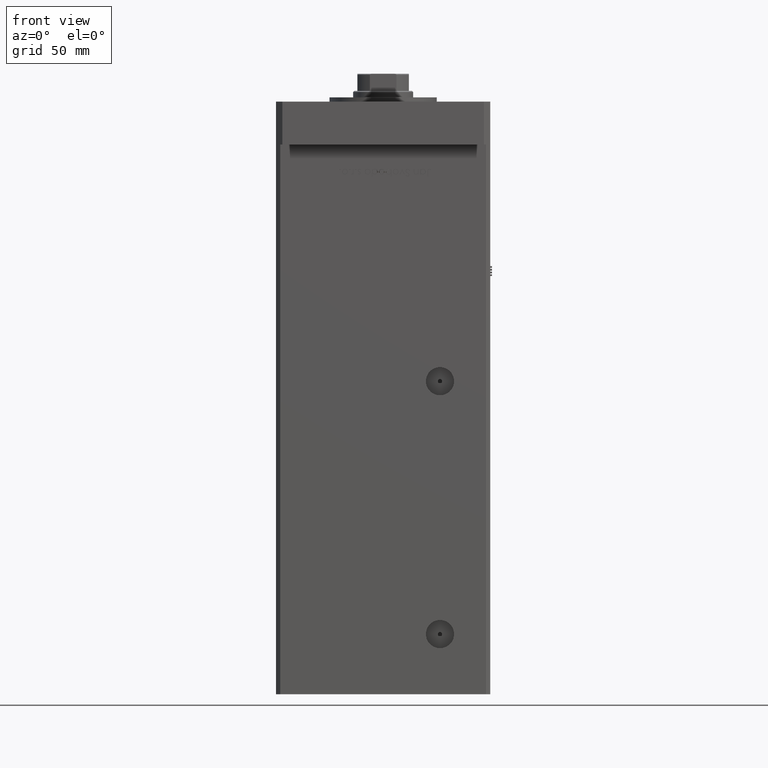
[diagram: clean part render]
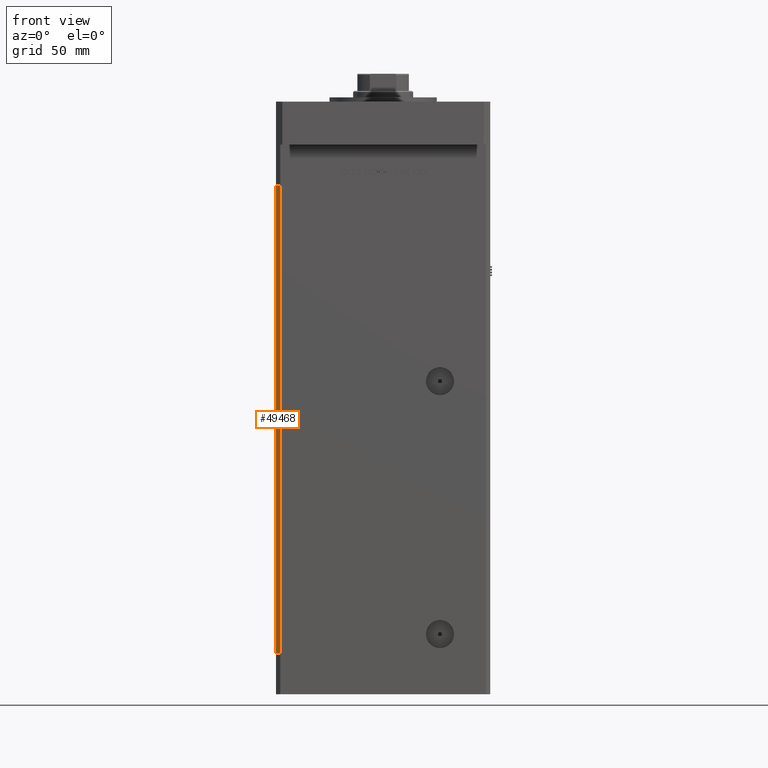
[diagram: same view with one face highlighted and labeled with its STEP entity id]
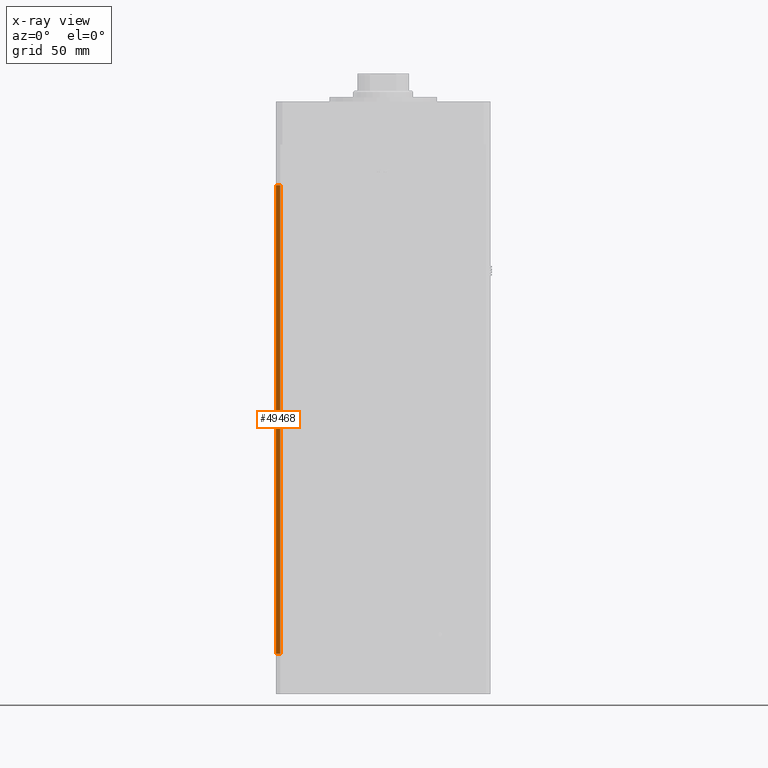
[diagram: x-ray of the same camera — body ghosted, the highlighted face saturated]
A machine part, front view. The second image highlights one B-rep face of the part: STEP entity #49468.
The next image is the same camera in x-ray: the body ghosted, the highlighted face saturated — about 0% of this face is hidden behind the body in this view.
In plain terms, the highlighted planar face has unit normal (0.7071, 0.7071, 0).
Its self-contained STEP definition (entity closure, byte-faithful):
#1218 = DIRECTION ( 'NONE',  ( -0.000000000000000000, -0.000000000000000000, -1.000000000000000000 ) ) ;
#2831 = DIRECTION ( 'NONE',  ( -0.000000000000000000, -0.000000000000000000, -1.000000000000000000 ) ) ;
#4010 = ORIENTED_EDGE ( 'NONE', *, *, #34100, .T. ) ;
#4667 = DIRECTION ( 'NONE',  ( -0.7071067811865474617, 0.7071067811865474617, 0.000000000000000000 ) ) ;
#5971 = ORIENTED_EDGE ( 'NONE', *, *, #17364, .T. ) ;
#6871 = DIRECTION ( 'NONE',  ( 0.7071067811865474617, -0.7071067811865474617, 0.000000000000000000 ) ) ;
#9250 = CARTESIAN_POINT ( 'NONE',  ( -49.99999999999998579, -41.49999999999999289, 0.000000000000000000 ) ) ;
#10655 = CARTESIAN_POINT ( 'NONE',  ( -49.99999999999998579, -41.49999999999999289, 0.000000000000000000 ) ) ;
#13565 = ORIENTED_EDGE ( 'NONE', *, *, #46848, .F. ) ;
#14138 = LINE ( 'NONE', #9250, #52594 ) ;
#14550 = VERTEX_POINT ( 'NONE', #30672 ) ;
#17364 = EDGE_CURVE ( 'NONE', #18830, #48861, #24978, .T. ) ;
#18371 = CARTESIAN_POINT ( 'NONE',  ( -49.99999999999998579, -41.49999999999999289, 218.5000000000000000 ) ) ;
#18830 = VERTEX_POINT ( 'NONE', #18371 ) ;
#22216 = EDGE_CURVE ( 'NONE', #14550, #30959, #27662, .T. ) ;
#22494 = DIRECTION ( 'NONE',  ( 0.7071067811865474617, -0.7071067811865474617, 0.000000000000000000 ) ) ;
#23879 = ORIENTED_EDGE ( 'NONE', *, *, #22216, .F. ) ;
#24702 = CARTESIAN_POINT ( 'NONE',  ( -49.99999999999998579, -41.49999999999999289, 218.5000000000000000 ) ) ;
#24978 = LINE ( 'NONE', #41931, #46607 ) ;
#27662 = LINE ( 'NONE', #31983, #36561 ) ;
#30672 = CARTESIAN_POINT ( 'NONE',  ( -47.99999999999998579, -43.50000000000000000, 218.5000000000000000 ) ) ;
#30821 = EDGE_LOOP ( 'NONE', ( #4010, #23879, #13565, #5971 ) ) ;
#30959 = VERTEX_POINT ( 'NONE', #52760 ) ;
#31983 = CARTESIAN_POINT ( 'NONE',  ( -47.99999999999998579, -43.50000000000000000, 218.5000000000000000 ) ) ;
#34100 = EDGE_CURVE ( 'NONE', #48861, #30959, #14138, .T. ) ;
#36561 = VECTOR ( 'NONE', #1218, 1000.000000000000000 ) ;
#38899 = PLANE ( 'NONE',  #49127 ) ;
#41931 = CARTESIAN_POINT ( 'NONE',  ( -49.99999999999998579, -41.49999999999999289, 218.5000000000000000 ) ) ;
#43498 = DIRECTION ( 'NONE',  ( 0.7071067811865475727, 0.7071067811865475727, -0.000000000000000000 ) ) ;
#46274 = LINE ( 'NONE', #24702, #46299 ) ;
#46299 = VECTOR ( 'NONE', #6871, 1000.000000000000114 ) ;
#46607 = VECTOR ( 'NONE', #2831, 1000.000000000000000 ) ;
#46848 = EDGE_CURVE ( 'NONE', #18830, #14550, #46274, .T. ) ;
#47264 = FACE_OUTER_BOUND ( 'NONE', #30821, .T. ) ;
#48861 = VERTEX_POINT ( 'NONE', #10655 ) ;
#49127 = AXIS2_PLACEMENT_3D ( 'NONE', #56473, #43498, #4667 ) ;
#49468 = ADVANCED_FACE ( 'NONE', ( #47264 ), #38899, .F. ) ;
#52594 = VECTOR ( 'NONE', #22494, 1000.000000000000114 ) ;
#52760 = CARTESIAN_POINT ( 'NONE',  ( -47.99999999999998579, -43.50000000000000000, 0.000000000000000000 ) ) ;
#56473 = CARTESIAN_POINT ( 'NONE',  ( -49.99999999999998579, -41.49999999999999289, 218.5000000000000000 ) ) ;